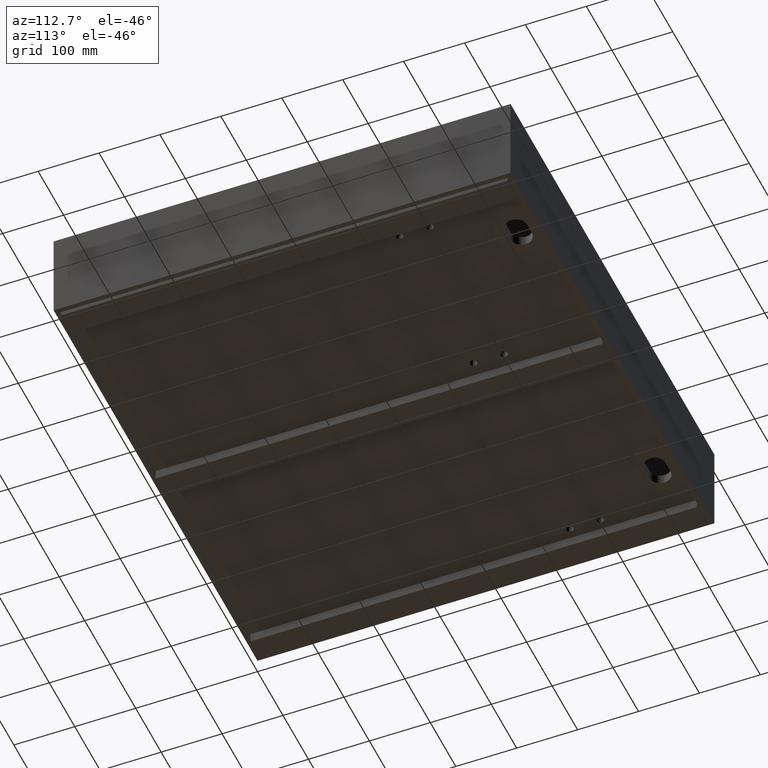
[diagram: clean part render]
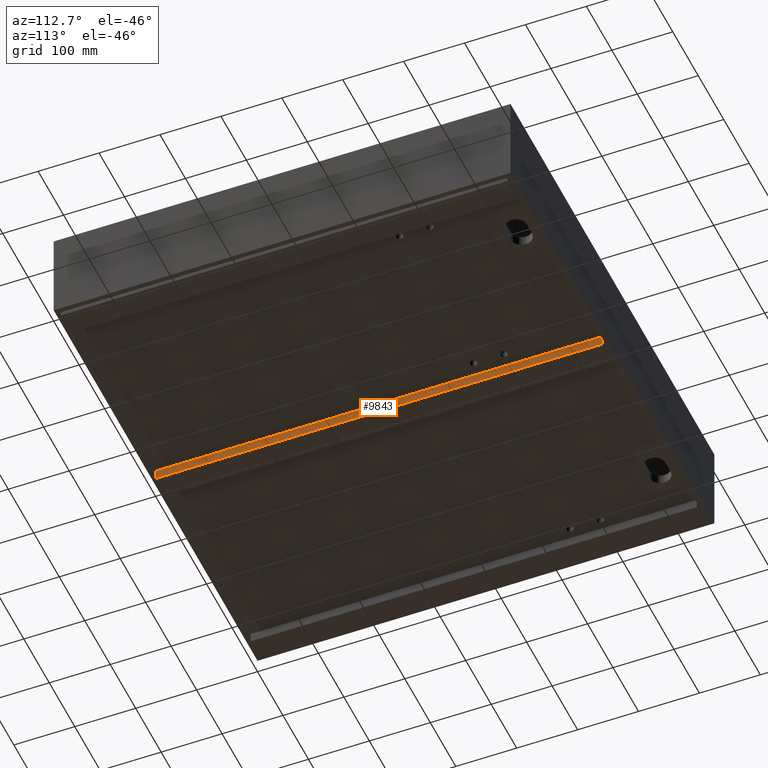
[diagram: same view with one face highlighted and labeled with its STEP entity id]
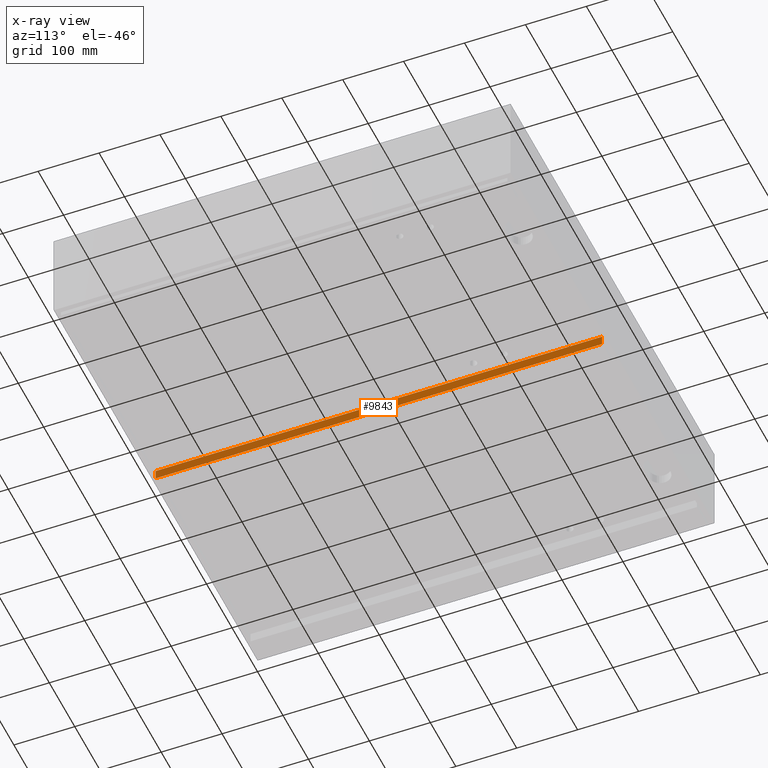
[diagram: x-ray of the same camera — body ghosted, the highlighted face saturated]
A machine part, auxiliary view. The second image highlights one B-rep face of the part: STEP entity #9843.
The next image is the same camera in x-ray: the body ghosted, the highlighted face saturated — about 0% of this face is hidden behind the body in this view.
In plain terms, the highlighted planar face has unit normal (-1, 0, 0).
Its self-contained STEP definition (entity closure, byte-faithful):
#267 = EDGE_CURVE ( 'NONE', #4813, #8970, #6616, .T. ) ;
#451 = PLANE ( 'NONE',  #5755 ) ;
#487 = EDGE_CURVE ( 'NONE', #8210, #6831, #8806, .T. ) ;
#537 = VECTOR ( 'NONE', #2133, 1000.000000000000000 ) ;
#612 = CARTESIAN_POINT ( 'NONE',  ( 419.9999999999998863, 8.499999999999952038, -157.0000000000003126 ) ) ;
#714 = CARTESIAN_POINT ( 'NONE',  ( 420.0000000000000000, 741.4999000000001388, -157.0000000000003126 ) ) ;
#1121 = ORIENTED_EDGE ( 'NONE', *, *, #3513, .T. ) ;
#1294 = VECTOR ( 'NONE', #4324, 1000.000000000000000 ) ;
#1411 = ORIENTED_EDGE ( 'NONE', *, *, #6643, .F. ) ;
#2038 = DIRECTION ( 'NONE',  ( 1.423362852083534639E-16, 0.0000000000000000000, 1.000000000000000000 ) ) ;
#2133 = DIRECTION ( 'NONE',  ( -1.514629162466674743E-16, -1.000000000000000000, -4.814824860968089633E-35 ) ) ;
#3261 = ORIENTED_EDGE ( 'NONE', *, *, #487, .F. ) ;
#3404 = DIRECTION ( 'NONE',  ( 1.423362852083534639E-16, 0.0000000000000000000, 1.000000000000000000 ) ) ;
#3513 = EDGE_CURVE ( 'NONE', #8210, #4813, #7891, .T. ) ;
#3956 = CARTESIAN_POINT ( 'NONE',  ( 420.0000000000000000, 741.4999000000001388, -157.0000000000003126 ) ) ;
#4058 = CARTESIAN_POINT ( 'NONE',  ( 420.0000000000000000, 741.4999000000001388, -157.0000000000003126 ) ) ;
#4324 = DIRECTION ( 'NONE',  ( -1.514629162466674743E-16, -1.000000000000000000, -4.814824860968089633E-35 ) ) ;
#4813 = VERTEX_POINT ( 'NONE', #8733 ) ;
#5755 = AXIS2_PLACEMENT_3D ( 'NONE', #4058, #7643, #11261 ) ;
#6264 = VECTOR ( 'NONE', #2038, 1000.000000000000000 ) ;
#6521 = LINE ( 'NONE', #10136, #6264 ) ;
#6616 = LINE ( 'NONE', #10239, #537 ) ;
#6643 = EDGE_CURVE ( 'NONE', #6831, #8970, #6521, .T. ) ;
#6831 = VERTEX_POINT ( 'NONE', #612 ) ;
#7480 = VECTOR ( 'NONE', #3404, 1000.000000000000000 ) ;
#7643 = DIRECTION ( 'NONE',  ( -1.000000000000000000, 1.514629162466674743E-16, 1.423362852083534639E-16 ) ) ;
#7891 = LINE ( 'NONE', #11505, #7480 ) ;
#8210 = VERTEX_POINT ( 'NONE', #3956 ) ;
#8537 = FACE_OUTER_BOUND ( 'NONE', #9428, .T. ) ;
#8733 = CARTESIAN_POINT ( 'NONE',  ( 420.0000000000000000, 741.4999000000001388, -141.0000000000002842 ) ) ;
#8806 = LINE ( 'NONE', #714, #1294 ) ;
#8970 = VERTEX_POINT ( 'NONE', #9395 ) ;
#9395 = CARTESIAN_POINT ( 'NONE',  ( 419.9999999999998863, 8.499999999999952038, -141.0000000000002842 ) ) ;
#9428 = EDGE_LOOP ( 'NONE', ( #10756, #1411, #3261, #1121 ) ) ;
#9843 = ADVANCED_FACE ( 'NONE', ( #8537 ), #451, .F. ) ;
#10136 = CARTESIAN_POINT ( 'NONE',  ( 419.9999999999998863, 8.499999999999952038, -157.0000000000003126 ) ) ;
#10239 = CARTESIAN_POINT ( 'NONE',  ( 420.0000000000000000, 741.4999000000001388, -141.0000000000002842 ) ) ;
#10756 = ORIENTED_EDGE ( 'NONE', *, *, #267, .T. ) ;
#11261 = DIRECTION ( 'NONE',  ( -1.514629162466674743E-16, -1.000000000000000000, -4.814824860968089633E-35 ) ) ;
#11505 = CARTESIAN_POINT ( 'NONE',  ( 420.0000000000000000, 741.4999000000001388, -157.0000000000003126 ) ) ;